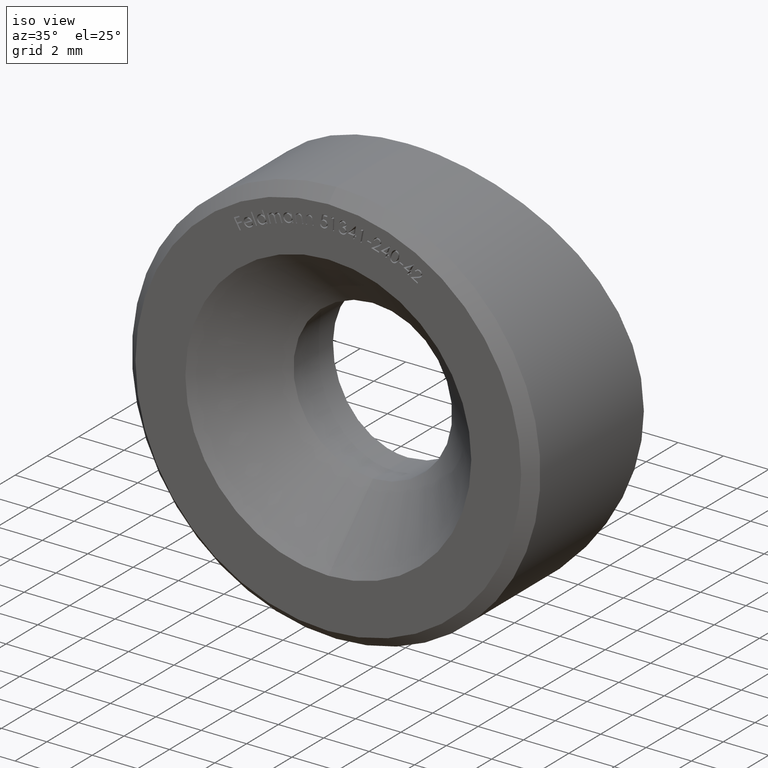
[diagram: clean part render]
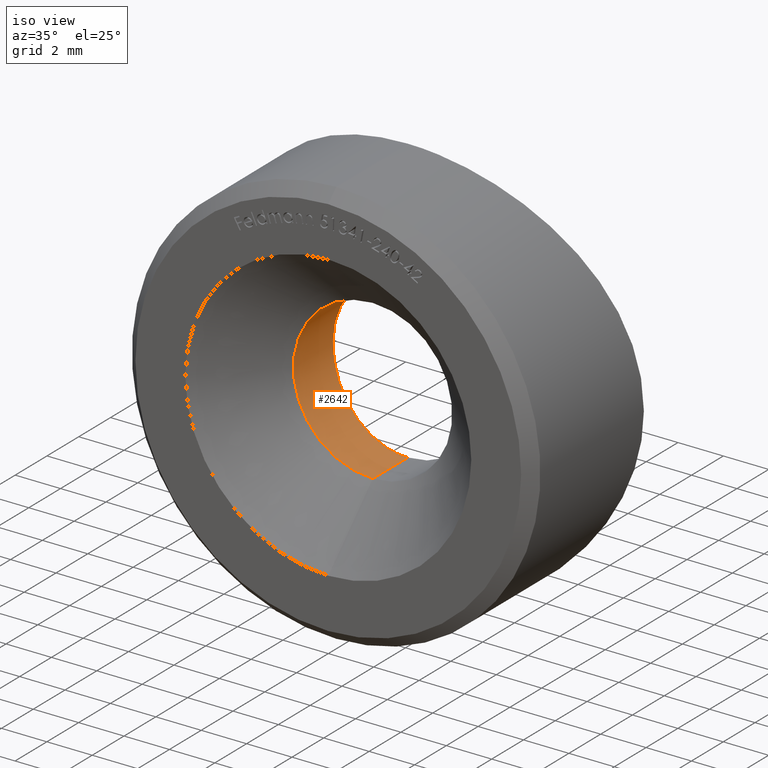
[diagram: same view with one face highlighted and labeled with its STEP entity id]
A machine part, iso view. The second image highlights one B-rep face of the part: STEP entity #2642.
In plain terms, the highlighted cylindrical surface (partial cylindrical patch) has radius 3.5 mm, axis along (-0, -1, -0).
Its self-contained STEP definition (entity closure, byte-faithful):
#155 = B_SPLINE_CURVE_WITH_KNOTS ( 'NONE', 3,
 ( #10070, #1849, #3961, #11082, #4980, #7946, #8030, #12085, #8973, #11046, #7046, #11996, #10999, #2882, #7985, #1940, #7854, #1802, #5991, #4935, #13064, #3826, #7007, #12042, #8877, #10028, #864, #6912, #9934, #4840, #11953, #5904, #5948, #5854 ),
 .UNSPECIFIED., .F., .F.,
 ( 4, 2, 2, 2, 2, 2, 2, 2, 2, 2, 2, 2, 2, 2, 2, 2, 4 ),
 ( 0.01096136897986401890, 0.01164628391295835508, 0.01233119884605269126, 0.01301611377914702918, 0.01370102871224136709, 0.01438594364533570327, 0.01507085857843003945, 0.01575577351152437910, 0.01644068844461871529, 0.01712560337771305147, 0.01781051831080739112, 0.01849543324390172730, 0.01918034817699606348, 0.01986526311009039966, 0.02055017804318473584, 0.02123509297627907549, 0.02192000790937341514 ),
 .UNSPECIFIED. ) ;
#233 = VERTEX_POINT ( 'NONE', #8176 ) ;
#672 = ORIENTED_EDGE ( 'NONE', *, *, #4136, .T. ) ;
#864 = CARTESIAN_POINT ( 'NONE',  ( -2.139729363453330091, 5.107382129968659257, -2.779329940844839975 ) ) ;
#902 = ORIENTED_EDGE ( 'NONE', *, *, #9719, .T. ) ;
#1488 = EDGE_LOOP ( 'NONE', ( #7407, #902, #672, #4266 ) ) ;
#1802 = CARTESIAN_POINT ( 'NONE',  ( -3.500140659879554583, 5.290934612432172557, -0.2291026041061294261 ) ) ;
#1849 = CARTESIAN_POINT ( 'NONE',  ( -0.2285757370031687996, 5.000000000000001776, 3.500000000000001332 ) ) ;
#1940 = CARTESIAN_POINT ( 'NONE',  ( -3.476880920004943754, 5.287005218381268357, 0.4619076065047312274 ) ) ;
#2642 = ADVANCED_FACE ( 'NONE', ( #10803 ), #2813, .F. ) ;
#2813 = CYLINDRICAL_SURFACE ( 'NONE', #4931, 3.500000000000000000 ) ;
#2882 = CARTESIAN_POINT ( 'NONE',  ( -3.320079831224719058, 5.261398731630418268, 1.131284351891471696 ) ) ;
#3024 = VECTOR ( 'NONE', #9809, 1000.000000000000000 ) ;
#3042 = CARTESIAN_POINT ( 'NONE',  ( 0.000000000000000000, 7.576189963076801703, 0.000000000000000000 ) ) ;
#3527 = CARTESIAN_POINT ( 'NONE',  ( 0.000000000000000000, 2.799999999999997602, -3.500000000000000000 ) ) ;
#3826 = CARTESIAN_POINT ( 'NONE',  ( -3.146001086128382696, 5.234539294825475864, -1.550854493732335193 ) ) ;
#3961 = CARTESIAN_POINT ( 'NONE',  ( -0.4560354843136215641, 5.003696017705625998, 3.477825901623345040 ) ) ;
#4014 = EDGE_CURVE ( 'NONE', #233, #7041, #6468, .T. ) ;
#4136 = EDGE_CURVE ( 'NONE', #9547, #7041, #11255, .T. ) ;
#4266 = ORIENTED_EDGE ( 'NONE', *, *, #4014, .F. ) ;
#4840 = CARTESIAN_POINT ( 'NONE',  ( -1.133783935372440821, 5.029289435022442412, -3.319106388057619483 ) ) ;
#4931 = AXIS2_PLACEMENT_3D ( 'NONE', #3042, #4964, #12204 ) ;
#4935 = CARTESIAN_POINT ( 'NONE',  ( -3.388749554086225579, 5.272544286227764054, -0.9047317476669791692 ) ) ;
#4964 = DIRECTION ( 'NONE',  ( -0.000000000000000000, -1.000000000000000000, -0.000000000000000000 ) ) ;
#4980 = CARTESIAN_POINT ( 'NONE',  ( -1.129014750062087069, 5.029032366305344226, 3.320739115625999549 ) ) ;
#5180 = VERTEX_POINT ( 'NONE', #12349 ) ;
#5854 = CARTESIAN_POINT ( 'NONE',  ( 1.442127753996932629E-16, 5.000000000000002665, -3.500000000000000000 ) ) ;
#5904 = CARTESIAN_POINT ( 'NONE',  ( -0.4604287392392183986, 5.003793961591958883, -3.477231773101688628 ) ) ;
#5948 = CARTESIAN_POINT ( 'NONE',  ( -0.2316223431125103704, 5.000000000000000000, -3.499999999999999556 ) ) ;
#5991 = CARTESIAN_POINT ( 'NONE',  ( -3.477587720504707214, 5.287123348558365521, -0.4566691600612163837 ) ) ;
#6468 = LINE ( 'NONE', #11555, #6944 ) ;
#6695 = AXIS2_PLACEMENT_3D ( 'NONE', #8550, #12639, #8497 ) ;
#6912 = CARTESIAN_POINT ( 'NONE',  ( -1.756803119078584885, 5.072041907444402753, -3.035911637333461588 ) ) ;
#6944 = VECTOR ( 'NONE', #7445, 1000.000000000000000 ) ;
#7007 = CARTESIAN_POINT ( 'NONE',  ( -3.038670270378164062, 5.218510132399416079, -1.751812455766851073 ) ) ;
#7041 = VERTEX_POINT ( 'NONE', #3527 ) ;
#7046 = CARTESIAN_POINT ( 'NONE',  ( -2.782413017037494551, 5.182993065454135184, 2.135474010529257782 ) ) ;
#7407 = ORIENTED_EDGE ( 'NONE', *, *, #10825, .F. ) ;
#7445 = DIRECTION ( 'NONE',  ( -0.000000000000000000, -1.000000000000000000, -0.000000000000000000 ) ) ;
#7854 = CARTESIAN_POINT ( 'NONE',  ( -3.499858033037155369, 5.290887303160988431, 0.2333803563618634946 ) ) ;
#7946 = CARTESIAN_POINT ( 'NONE',  ( -1.550284167767608468, 5.055706116023323204, 3.146204312989767438 ) ) ;
#7985 = CARTESIAN_POINT ( 'NONE',  ( -3.387485317793240025, 5.272339000986232094, 0.9093969378530920578 ) ) ;
#8030 = CARTESIAN_POINT ( 'NONE',  ( -1.754329851924247841, 5.071842234326433108, 3.037271006215211067 ) ) ;
#8176 = CARTESIAN_POINT ( 'NONE',  ( 1.442127753996932629E-16, 5.000000000000002665, -3.500000000000000000 ) ) ;
#8497 = DIRECTION ( 'NONE',  ( 0.000000000000000000, 0.000000000000000000, -1.000000000000000000 ) ) ;
#8550 = CARTESIAN_POINT ( 'NONE',  ( 0.000000000000000000, 2.799999999999997602, 0.000000000000000000 ) ) ;
#8570 = LINE ( 'NONE', #10723, #3024 ) ;
#8877 = CARTESIAN_POINT ( 'NONE',  ( -2.637453253092510330, 5.164076111643898237, -2.312077070660482736 ) ) ;
#8973 = CARTESIAN_POINT ( 'NONE',  ( -2.311922951615708044, 5.125811502070808601, 2.637621132394981860 ) ) ;
#9547 = VERTEX_POINT ( 'NONE', #11369 ) ;
#9719 = EDGE_CURVE ( 'NONE', #5180, #9547, #8570, .T. ) ;
#9809 = DIRECTION ( 'NONE',  ( -0.000000000000000000, -1.000000000000000000, -0.000000000000000000 ) ) ;
#9934 = CARTESIAN_POINT ( 'NONE',  ( -1.554607559020375840, 5.056025747849635543, -3.144062430167413602 ) ) ;
#10028 = CARTESIAN_POINT ( 'NONE',  ( -2.315613327473252880, 5.126220357596326771, -2.634349058221115314 ) ) ;
#10070 = CARTESIAN_POINT ( 'NONE',  ( 4.286262307485792157E-16, 5.000000000000000000, 3.500000000000000000 ) ) ;
#10723 = CARTESIAN_POINT ( 'NONE',  ( 4.286263797015736595E-16, 7.576189963076801703, 3.500000000000000000 ) ) ;
#10803 = FACE_OUTER_BOUND ( 'NONE', #1488, .T. ) ;
#10825 = EDGE_CURVE ( 'NONE', #5180, #233, #155, .T. ) ;
#10999 = CARTESIAN_POINT ( 'NONE',  ( -3.143803663488858202, 5.234207582662003588, 1.555388342496399456 ) ) ;
#11046 = CARTESIAN_POINT ( 'NONE',  ( -2.634717834455309493, 5.163729643464323615, 2.315231069476048287 ) ) ;
#11082 = CARTESIAN_POINT ( 'NONE',  ( -0.9086622993366538781, 5.018271937857720744, 3.387856872820872223 ) ) ;
#11255 = CIRCLE ( 'NONE', #6695, 3.500000000000000000 ) ;
#11369 = CARTESIAN_POINT ( 'NONE',  ( 4.286263797015736595E-16, 2.799999999999997602, 3.500000000000000000 ) ) ;
#11555 = CARTESIAN_POINT ( 'NONE',  ( 0.000000000000000000, 7.576189963076801703, -3.500000000000000000 ) ) ;
#11953 = CARTESIAN_POINT ( 'NONE',  ( -0.9124969718379755124, 5.018439757115404021, -3.386810402749445892 ) ) ;
#11996 = CARTESIAN_POINT ( 'NONE',  ( -3.036135605263670989, 5.218143950770731010, 1.756118456561460484 ) ) ;
#12042 = CARTESIAN_POINT ( 'NONE',  ( -2.784709054118645444, 5.183296415464776707, -2.132547625768211219 ) ) ;
#12085 = CARTESIAN_POINT ( 'NONE',  ( -2.135982256492665599, 5.107008187540264643, 2.782133748491723235 ) ) ;
#12204 = DIRECTION ( 'NONE',  ( 0.000000000000000000, 0.000000000000000000, -1.000000000000000000 ) ) ;
#12349 = CARTESIAN_POINT ( 'NONE',  ( 4.286262307485792157E-16, 5.000000000000000000, 3.500000000000000000 ) ) ;
#12639 = DIRECTION ( 'NONE',  ( -0.000000000000000000, -1.000000000000000000, -0.000000000000000000 ) ) ;
#13064 = CARTESIAN_POINT ( 'NONE',  ( -3.321299922214591582, 5.261594324284493140, -1.127581181710696212 ) ) ;